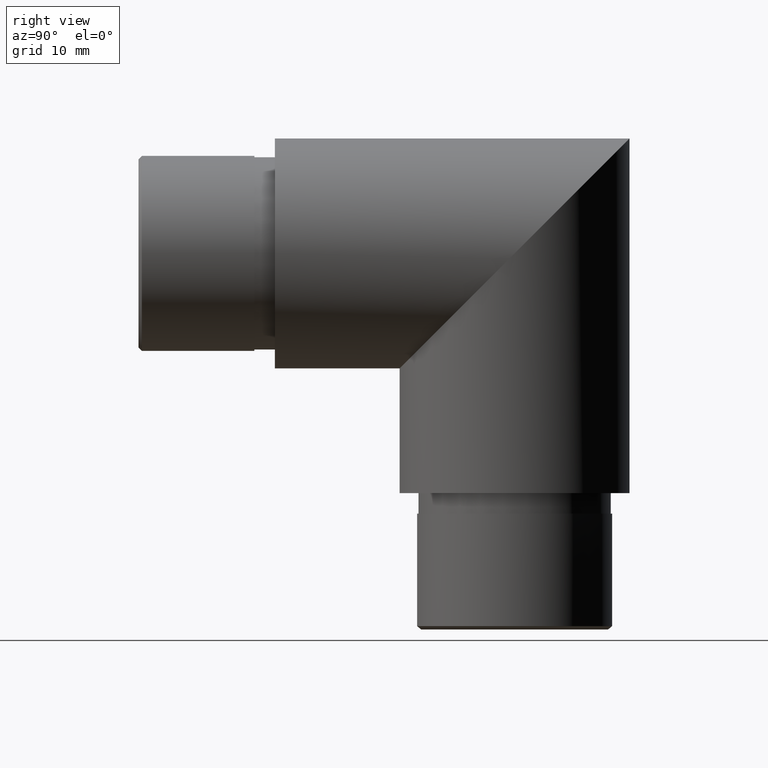
[diagram: clean part render]
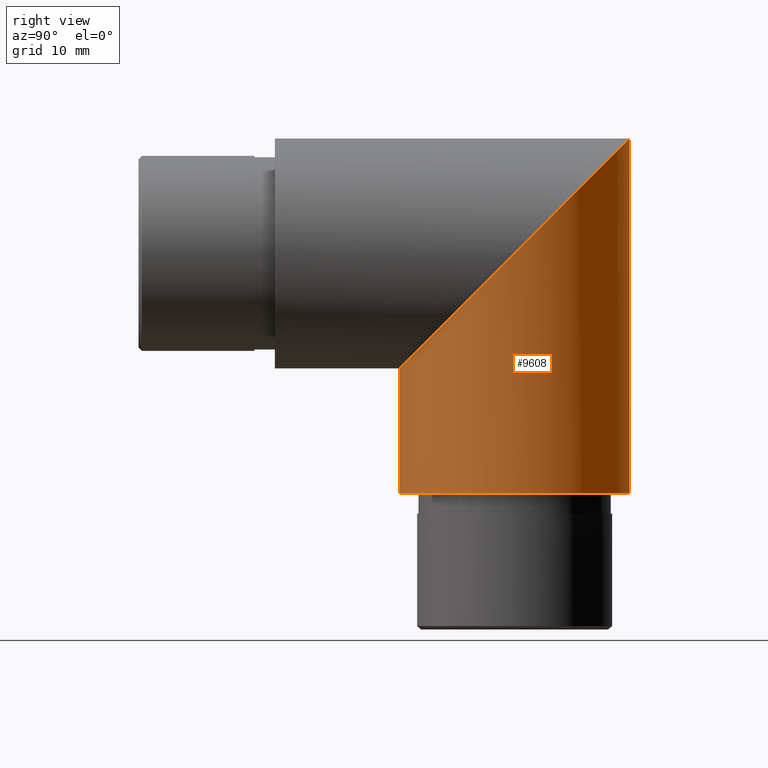
[diagram: same view with one face highlighted and labeled with its STEP entity id]
A machine part, right view. The second image highlights one B-rep face of the part: STEP entity #9608.
In plain terms, the highlighted cylindrical surface (partial cylindrical patch) has radius 16.85 mm, axis along (0, -0, -1).
Its self-contained STEP definition (entity closure, byte-faithful):
#126 = CYLINDRICAL_SURFACE ( 'NONE', #8815, 16.84999999999999787 ) ;
#726 = ORIENTED_EDGE ( 'NONE', *, *, #8582, .T. ) ;
#764 = EDGE_LOOP ( 'NONE', ( #726, #1548, #5700, #2521 ) ) ;
#962 = DIRECTION ( 'NONE',  ( 0.000000000000000000, -3.355937307721845781E-15, -1.000000000000000000 ) ) ;
#1548 = ORIENTED_EDGE ( 'NONE', *, *, #2190, .T. ) ;
#1624 = CARTESIAN_POINT ( 'NONE',  ( 0.000000000000000000, 35.15000000000000568, 0.000000000000000000 ) ) ;
#1709 = CARTESIAN_POINT ( 'NONE',  ( 2.063529856563290244E-15, 18.29999999999995097, -16.85000000000000142 ) ) ;
#1760 = DIRECTION ( 'NONE',  ( 0.000000000000000000, -3.355937307721845781E-15, -1.000000000000000000 ) ) ;
#2190 = EDGE_CURVE ( 'NONE', #7961, #2505, #8702, .T. ) ;
#2505 = VERTEX_POINT ( 'NONE', #4180 ) ;
#2521 = ORIENTED_EDGE ( 'NONE', *, *, #2797, .F. ) ;
#2620 = VERTEX_POINT ( 'NONE', #12630 ) ;
#2702 = AXIS2_PLACEMENT_3D ( 'NONE', #9151, #3171, #4197 ) ;
#2737 = FACE_OUTER_BOUND ( 'NONE', #764, .T. ) ;
#2797 = EDGE_CURVE ( 'NONE', #5932, #2620, #5626, .T. ) ;
#3171 = DIRECTION ( 'NONE',  ( -0.000000000000000000, 3.355937307721845781E-15, 1.000000000000000000 ) ) ;
#3669 = CARTESIAN_POINT ( 'NONE',  ( 33.69999999999999574, 18.29999999999995097, -16.85000000000000142 ) ) ;
#3874 = CARTESIAN_POINT ( 'NONE',  ( 2.063529856563290244E-15, 18.30000000000000782, 5.654754363511311079E-14 ) ) ;
#4180 = CARTESIAN_POINT ( 'NONE',  ( 2.063529856563300894E-15, 18.29999999999989058, -35.14999999999994174 ) ) ;
#4197 = DIRECTION ( 'NONE',  ( 0.000000000000000000, 1.000000000000000000, -3.294430340133994837E-15 ) ) ;
#4646 = CARTESIAN_POINT ( 'NONE',  ( 0.000000000000000000, 52.00000000000005684, 16.84999999999999787 ) ) ;
#5626 = LINE ( 'NONE', #8054, #10525 ) ;
#5700 = ORIENTED_EDGE ( 'NONE', *, *, #6294, .T. ) ;
#5932 = VERTEX_POINT ( 'NONE', #6672 ) ;
#6294 = EDGE_CURVE ( 'NONE', #2505, #2620, #7207, .T. ) ;
#6672 = CARTESIAN_POINT ( 'NONE',  ( 0.000000000000000000, 52.00000000000005684, 16.84999999999999787 ) ) ;
#7206 = DIRECTION ( 'NONE',  ( 0.000000000000000000, -3.355937307721845781E-15, -1.000000000000000000 ) ) ;
#7207 = CIRCLE ( 'NONE', #2702, 16.85000000000000497 ) ;
#7961 = VERTEX_POINT ( 'NONE', #9835 ) ;
#8054 = CARTESIAN_POINT ( 'NONE',  ( 0.000000000000000000, 52.00000000000000711, -5.654754363511311079E-14 ) ) ;
#8582 = EDGE_CURVE ( 'NONE', #5932, #7961, #12650, .T. ) ;
#8702 = LINE ( 'NONE', #3874, #12532 ) ;
#8815 = AXIS2_PLACEMENT_3D ( 'NONE', #1624, #1760, #11503 ) ;
#9151 = CARTESIAN_POINT ( 'NONE',  ( 0.000000000000000000, 35.14999999999989200, -35.14999999999999858 ) ) ;
#9533 = CARTESIAN_POINT ( 'NONE',  ( 33.69999999999999574, 52.00000000000006395, 16.85000000000000497 ) ) ;
#9608 = ADVANCED_FACE ( 'NONE', ( #2737 ), #126, .T. ) ;
#9835 = CARTESIAN_POINT ( 'NONE',  ( 2.063529856563290244E-15, 18.29999999999995097, -16.85000000000000142 ) ) ;
#10525 = VECTOR ( 'NONE', #7206, 1000.000000000000000 ) ;
#11503 = DIRECTION ( 'NONE',  ( 0.000000000000000000, 1.000000000000000000, -3.355937307721846569E-15 ) ) ;
#12532 = VECTOR ( 'NONE', #962, 1000.000000000000000 ) ;
#12630 = CARTESIAN_POINT ( 'NONE',  ( 0.000000000000000000, 51.99999999999989342, -35.15000000000005542 ) ) ;
#12650 =( BOUNDED_CURVE ( )  B_SPLINE_CURVE ( 3, ( #4646, #9533, #3669, #1709 ),
 .UNSPECIFIED., .F., .T. ) 
 B_SPLINE_CURVE_WITH_KNOTS ( ( 4, 4 ),
 ( 3.141592653589793116, 6.283185307179586232 ),
 .UNSPECIFIED. ) 
 CURVE ( )  GEOMETRIC_REPRESENTATION_ITEM ( )  RATIONAL_B_SPLINE_CURVE ( ( 1.000000000000000000, 0.3333333333333333703, 0.3333333333333333703, 1.000000000000000000 ) ) 
 REPRESENTATION_ITEM ( '' )  );